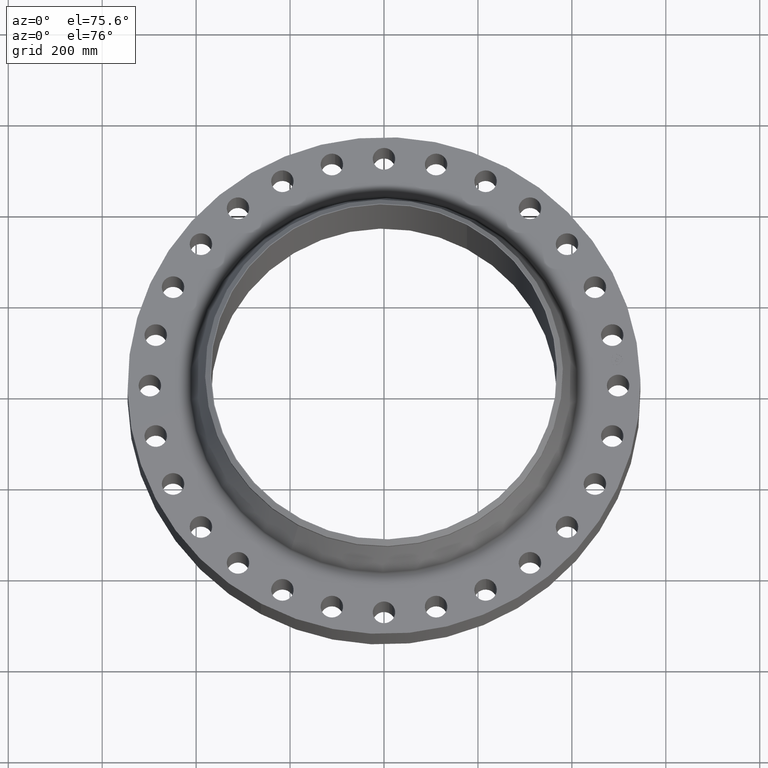
[diagram: clean part render]
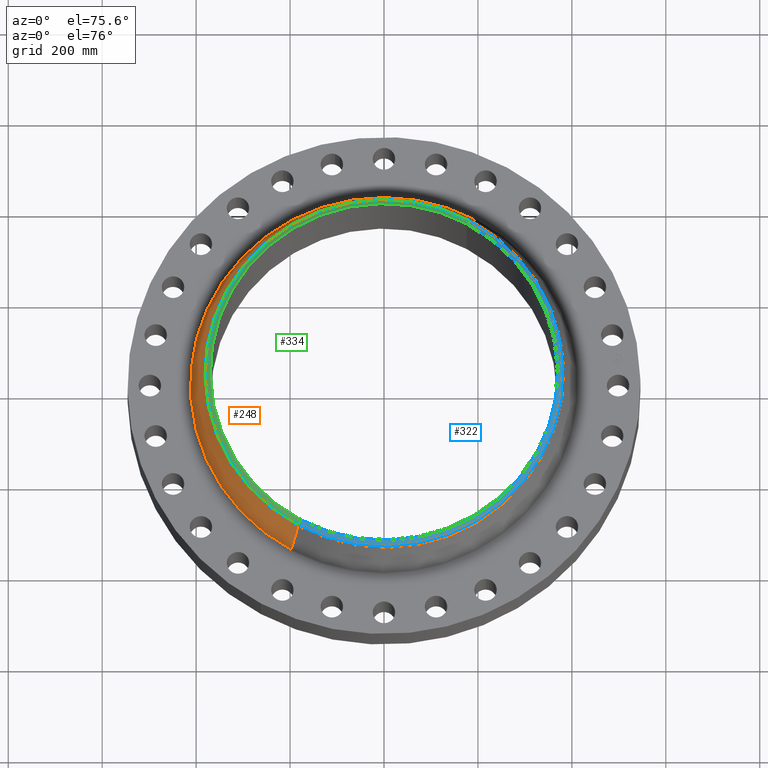
[diagram: same view with three faces highlighted in distinct colors, each labeled with its STEP entity id]
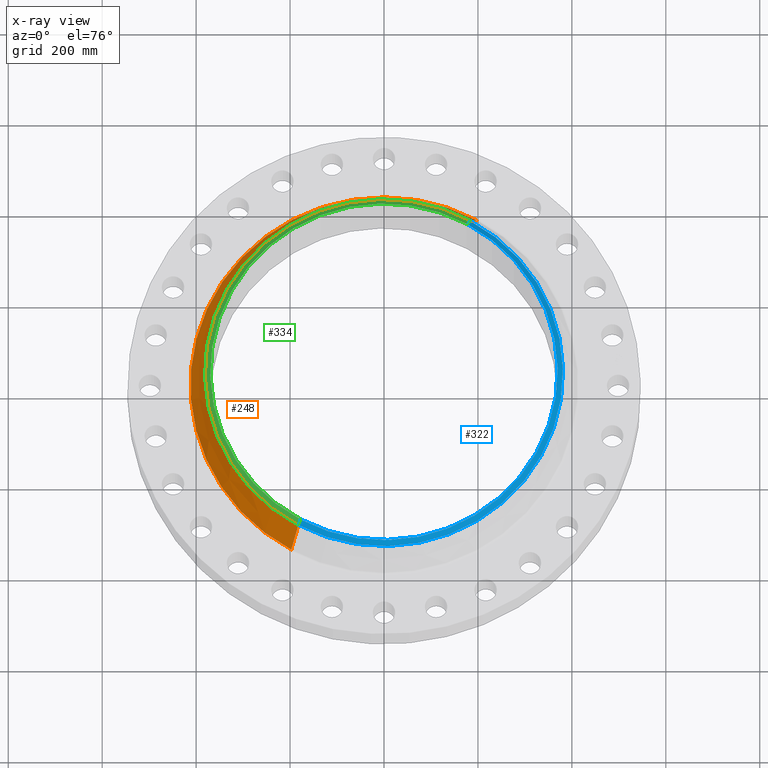
[diagram: x-ray of the same camera — body ghosted, the three highlighted faces saturated]
A machine part, auxiliary view with three faces highlighted in distinct colors.
The next image is the same camera in x-ray (body ghosted, the three faces saturated) — at least one of them is partly hidden behind the body in this view.
Their STEP definitions:

[orange] entity #248 — the highlighted conical surface has half-angle 17.547 deg.
#196=AXIS2_PLACEMENT_3D('Circle Axis2P3D',#194,#195,$) ;
#209=AXIS2_PLACEMENT_3D('Cone Axis2P3D',#206,#207,#208) ;
#239=AXIS2_PLACEMENT_3D('Circle Axis2P3D',#237,#238,$) ;
#167=CARTESIAN_POINT('Vertex',(7.77857513447,14.2385862761,3.74462823369)) ;
#174=CARTESIAN_POINT('Vertex',(-7.77857513447,-14.2385862761,3.74462823369)) ;
#194=CARTESIAN_POINT('Axis2P3D Location',(0.,0.,3.74462823369)) ;
#206=CARTESIAN_POINT('Axis2P3D Location',(0.,0.,7.61807397035)) ;
#211=CARTESIAN_POINT('Line Origine',(7.48497910678,13.7011623522,5.68135110202)) ;
#215=CARTESIAN_POINT('Vertex',(7.19138307909,13.1637384284,7.61807397035)) ;
#222=CARTESIAN_POINT('Vertex',(-7.19138307909,-13.1637384284,7.61807397035)) ;
#225=CARTESIAN_POINT('Line Origine',(-7.48497910678,-13.7011623522,5.68135110202)) ;
#237=CARTESIAN_POINT('Axis2P3D Location',(0.,0.,7.61807397035)) ;
#195=DIRECTION('Axis2P3D Direction',(0.,0.,-0.0393700787402)) ;
#207=DIRECTION('Axis2P3D Direction',(0.,0.,-0.0393700787402)) ;
#208=DIRECTION('Axis2P3D XDirection',(-0.0188750212049,-0.0345504945626,0.)) ;
#212=DIRECTION('Vector Direction',(0.00569057475024,0.0104165272098,-0.0375381994761)) ;
#226=DIRECTION('Vector Direction',(-0.00569057475024,-0.0104165272098,-0.0375381994761)) ;
#238=DIRECTION('Axis2P3D Direction',(0.,0.,-0.0393700787402)) ;
#213=VECTOR('Line Direction',#212,0.0393700787402) ;
#227=VECTOR('Line Direction',#226,0.0393700787402) ;
#243=ORIENTED_EDGE('',*,*,#198,.F.) ;
#244=ORIENTED_EDGE('',*,*,#229,.T.) ;
#245=ORIENTED_EDGE('',*,*,#241,.T.) ;
#246=ORIENTED_EDGE('',*,*,#217,.F.) ;
#248=ADVANCED_FACE('PartBody',(#247),#210,.T.) ;
#197=CIRCLE('generated circle',#196,16.2247825953) ;
#240=CIRCLE('generated circle',#239,15.0000000001) ;
#210=CONICAL_SURFACE('Cone',#209,15.0000000001,0.306251904935) ;
#198=EDGE_CURVE('',#175,#168,#197,.T.) ;
#217=EDGE_CURVE('',#168,#216,#214,.F.) ;
#229=EDGE_CURVE('',#175,#223,#228,.F.) ;
#241=EDGE_CURVE('',#223,#216,#240,.T.) ;
#242=EDGE_LOOP('',(#243,#244,#245,#246)) ;
#247=FACE_OUTER_BOUND('',#242,.T.) ;
#214=LINE('Line',#211,#213) ;
#228=LINE('Line',#225,#227) ;
#168=VERTEX_POINT('',#167) ;
#175=VERTEX_POINT('',#174) ;
#216=VERTEX_POINT('',#215) ;
#223=VERTEX_POINT('',#222) ;

[blue] entity #322 — the highlighted conical surface has half-angle 52.5 deg.
#270=AXIS2_PLACEMENT_3D('Circle Axis2P3D',#268,#269,$) ;
#295=AXIS2_PLACEMENT_3D('Cone Axis2P3D',#292,#293,#294) ;
#306=AXIS2_PLACEMENT_3D('Circle Axis2P3D',#304,#305,$) ;
#258=CARTESIAN_POINT('Vertex',(-7.19138307909,-13.1637384284,7.85429444279)) ;
#265=CARTESIAN_POINT('Vertex',(7.19138307909,13.1637384284,7.85429444279)) ;
#268=CARTESIAN_POINT('Axis2P3D Location',(0.,0.,7.85429444279)) ;
#292=CARTESIAN_POINT('Axis2P3D Location',(0.,0.,8.19000000003)) ;
#297=CARTESIAN_POINT('Line Origine',(7.08650874252,12.971767243,8.02214722141)) ;
#301=CARTESIAN_POINT('Vertex',(6.98163440595,12.7797960576,8.19000000003)) ;
#304=CARTESIAN_POINT('Axis2P3D Location',(0.,0.,8.19000000003)) ;
#308=CARTESIAN_POINT('Vertex',(-6.98163440595,-12.7797960576,8.19000000003)) ;
#311=CARTESIAN_POINT('Line Origine',(-7.08650874252,-12.971767243,8.02214722141)) ;
#269=DIRECTION('Axis2P3D Direction',(0.,0.,-0.0393700787402)) ;
#293=DIRECTION('Axis2P3D Direction',(-0.,-0.,-0.0393700787402)) ;
#294=DIRECTION('Axis2P3D XDirection',(-0.0188750212049,-0.0345504945626,0.)) ;
#298=DIRECTION('Vector Direction',(0.014974561121,0.02741075027,-0.023966985394)) ;
#305=DIRECTION('Axis2P3D Direction',(0.,-0.,-0.0393700787402)) ;
#312=DIRECTION('Vector Direction',(-0.014974561121,-0.02741075027,-0.023966985394)) ;
#299=VECTOR('Line Direction',#298,0.0393700787402) ;
#313=VECTOR('Line Direction',#312,0.0393700787402) ;
#317=ORIENTED_EDGE('',*,*,#303,.F.) ;
#318=ORIENTED_EDGE('',*,*,#310,.T.) ;
#319=ORIENTED_EDGE('',*,*,#315,.T.) ;
#320=ORIENTED_EDGE('',*,*,#272,.F.) ;
#322=ADVANCED_FACE('PartBody',(#321),#296,.T.) ;
#271=CIRCLE('generated circle',#270,15.0000000001) ;
#307=CIRCLE('generated circle',#306,14.5625000001) ;
#296=CONICAL_SURFACE('Cone',#295,14.5625000001,0.916297857297) ;
#272=EDGE_CURVE('',#266,#259,#271,.T.) ;
#303=EDGE_CURVE('',#302,#266,#300,.T.) ;
#310=EDGE_CURVE('',#302,#309,#307,.T.) ;
#315=EDGE_CURVE('',#309,#259,#314,.T.) ;
#316=EDGE_LOOP('',(#317,#318,#319,#320)) ;
#321=FACE_OUTER_BOUND('',#316,.T.) ;
#300=LINE('Line',#297,#299) ;
#314=LINE('Line',#311,#313) ;
#259=VERTEX_POINT('',#258) ;
#266=VERTEX_POINT('',#265) ;
#302=VERTEX_POINT('',#301) ;
#309=VERTEX_POINT('',#308) ;

[green] entity #334 — the highlighted conical surface has half-angle 52.5 deg.
#282=AXIS2_PLACEMENT_3D('Circle Axis2P3D',#280,#281,$) ;
#295=AXIS2_PLACEMENT_3D('Cone Axis2P3D',#292,#293,#294) ;
#325=AXIS2_PLACEMENT_3D('Circle Axis2P3D',#323,#324,$) ;
#258=CARTESIAN_POINT('Vertex',(-7.19138307909,-13.1637384284,7.85429444279)) ;
#265=CARTESIAN_POINT('Vertex',(7.19138307909,13.1637384284,7.85429444279)) ;
#280=CARTESIAN_POINT('Axis2P3D Location',(0.,0.,7.85429444279)) ;
#292=CARTESIAN_POINT('Axis2P3D Location',(0.,0.,8.19000000003)) ;
#297=CARTESIAN_POINT('Line Origine',(7.08650874252,12.971767243,8.02214722141)) ;
#301=CARTESIAN_POINT('Vertex',(6.98163440595,12.7797960576,8.19000000003)) ;
#308=CARTESIAN_POINT('Vertex',(-6.98163440595,-12.7797960576,8.19000000003)) ;
#311=CARTESIAN_POINT('Line Origine',(-7.08650874252,-12.971767243,8.02214722141)) ;
#323=CARTESIAN_POINT('Axis2P3D Location',(0.,0.,8.19000000003)) ;
#281=DIRECTION('Axis2P3D Direction',(0.,0.,-0.0393700787402)) ;
#293=DIRECTION('Axis2P3D Direction',(-0.,-0.,-0.0393700787402)) ;
#294=DIRECTION('Axis2P3D XDirection',(-0.0188750212049,-0.0345504945626,0.)) ;
#298=DIRECTION('Vector Direction',(0.014974561121,0.02741075027,-0.023966985394)) ;
#312=DIRECTION('Vector Direction',(-0.014974561121,-0.02741075027,-0.023966985394)) ;
#324=DIRECTION('Axis2P3D Direction',(0.,-0.,-0.0393700787402)) ;
#299=VECTOR('Line Direction',#298,0.0393700787402) ;
#313=VECTOR('Line Direction',#312,0.0393700787402) ;
#329=ORIENTED_EDGE('',*,*,#315,.F.) ;
#330=ORIENTED_EDGE('',*,*,#327,.T.) ;
#331=ORIENTED_EDGE('',*,*,#303,.T.) ;
#332=ORIENTED_EDGE('',*,*,#284,.F.) ;
#334=ADVANCED_FACE('PartBody',(#333),#296,.T.) ;
#283=CIRCLE('generated circle',#282,15.0000000001) ;
#326=CIRCLE('generated circle',#325,14.5625000001) ;
#296=CONICAL_SURFACE('Cone',#295,14.5625000001,0.916297857297) ;
#284=EDGE_CURVE('',#259,#266,#283,.T.) ;
#303=EDGE_CURVE('',#302,#266,#300,.T.) ;
#315=EDGE_CURVE('',#309,#259,#314,.T.) ;
#327=EDGE_CURVE('',#309,#302,#326,.T.) ;
#328=EDGE_LOOP('',(#329,#330,#331,#332)) ;
#333=FACE_OUTER_BOUND('',#328,.T.) ;
#300=LINE('Line',#297,#299) ;
#314=LINE('Line',#311,#313) ;
#259=VERTEX_POINT('',#258) ;
#266=VERTEX_POINT('',#265) ;
#302=VERTEX_POINT('',#301) ;
#309=VERTEX_POINT('',#308) ;